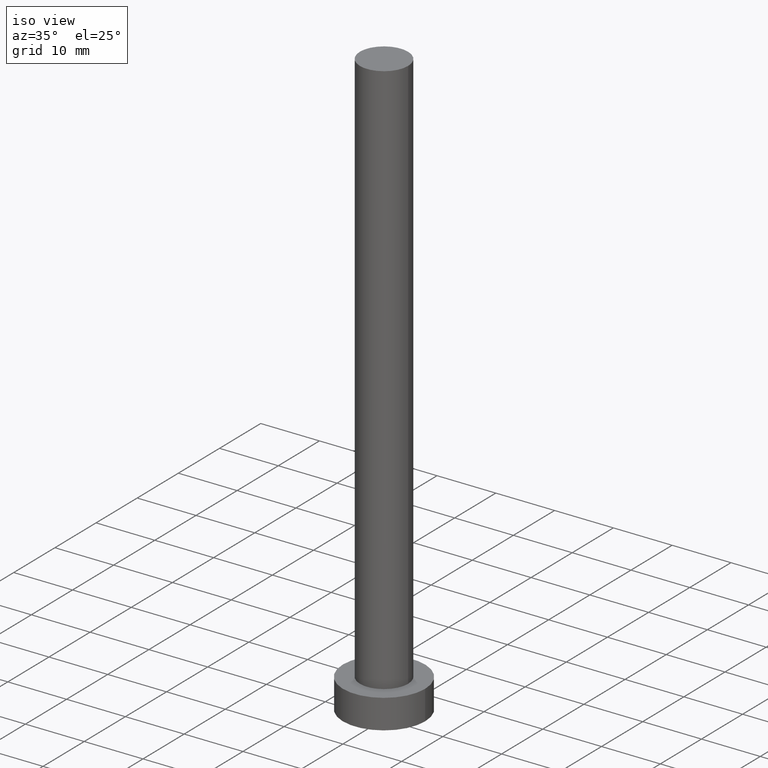
[diagram: clean part render]
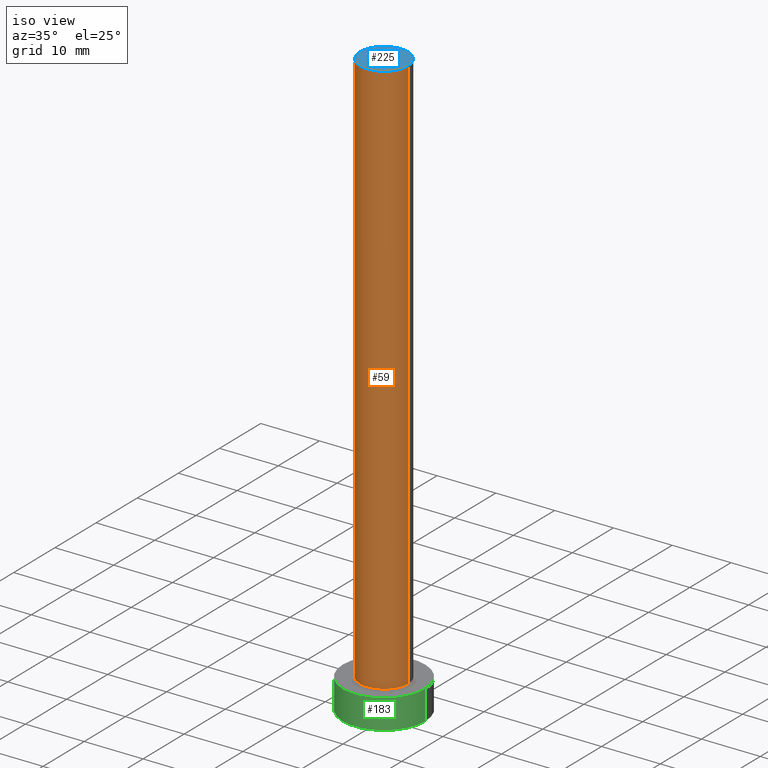
[diagram: same view with three faces highlighted in distinct colors, each labeled with its STEP entity id]
A machine part, iso view with three faces highlighted in distinct colors.
Their STEP definitions:

[orange] entity #59 — the highlighted cylindrical surface (edge-blend (fillet) strip) has radius 4.1 mm, axis along (-0, -0, -1).
#1 = DIRECTION ( 'NONE',  ( 1.000000000000000000, 0.000000000000000000, 0.000000000000000000 ) ) ;
#10 = ORIENTED_EDGE ( 'NONE', *, *, #232, .T. ) ;
#13 = VERTEX_POINT ( 'NONE', #27 ) ;
#27 = CARTESIAN_POINT ( 'NONE',  ( 4.099999999999999645, 5.021051876504147385E-16, 5.000000000000000000 ) ) ;
#36 = EDGE_LOOP ( 'NONE', ( #208, #153, #216, #10 ) ) ;
#50 = CYLINDRICAL_SURFACE ( 'NONE', #212, 4.099999999999999645 ) ;
#51 = FACE_OUTER_BOUND ( 'NONE', #36, .T. ) ;
#59 = ADVANCED_FACE ( 'NONE', ( #51 ), #50, .T. ) ;
#62 = CARTESIAN_POINT ( 'NONE',  ( 0.000000000000000000, 0.000000000000000000, 5.000000000000000000 ) ) ;
#63 = DIRECTION ( 'NONE',  ( -0.000000000000000000, -0.000000000000000000, -1.000000000000000000 ) ) ;
#70 = EDGE_CURVE ( 'NONE', #89, #253, #243, .T. ) ;
#85 = CARTESIAN_POINT ( 'NONE',  ( -4.099999999999999645, 0.000000000000000000, 5.000000000000000000 ) ) ;
#89 = VERTEX_POINT ( 'NONE', #234 ) ;
#93 = DIRECTION ( 'NONE',  ( 0.000000000000000000, 0.000000000000000000, 1.000000000000000000 ) ) ;
#98 = VECTOR ( 'NONE', #145, 1000.000000000000000 ) ;
#103 = CARTESIAN_POINT ( 'NONE',  ( 0.000000000000000000, 0.000000000000000000, 100.0000000000000000 ) ) ;
#111 = VECTOR ( 'NONE', #63, 1000.000000000000000 ) ;
#122 = VERTEX_POINT ( 'NONE', #140 ) ;
#129 = AXIS2_PLACEMENT_3D ( 'NONE', #193, #93, #1 ) ;
#140 = CARTESIAN_POINT ( 'NONE',  ( 4.099999999999999645, 5.021051876504147385E-16, 100.0000000000000000 ) ) ;
#145 = DIRECTION ( 'NONE',  ( -0.000000000000000000, -0.000000000000000000, -1.000000000000000000 ) ) ;
#151 = CIRCLE ( 'NONE', #129, 4.099999999999999645 ) ;
#153 = ORIENTED_EDGE ( 'NONE', *, *, #170, .F. ) ;
#154 = LINE ( 'NONE', #174, #111 ) ;
#164 = DIRECTION ( 'NONE',  ( -0.000000000000000000, -0.000000000000000000, -1.000000000000000000 ) ) ;
#170 = EDGE_CURVE ( 'NONE', #89, #122, #151, .T. ) ;
#173 = CIRCLE ( 'NONE', #245, 4.099999999999999645 ) ;
#174 = CARTESIAN_POINT ( 'NONE',  ( 4.099999999999999645, 5.021051876504147385E-16, 100.0000000000000000 ) ) ;
#192 = EDGE_CURVE ( 'NONE', #122, #13, #154, .T. ) ;
#193 = CARTESIAN_POINT ( 'NONE',  ( 0.000000000000000000, 0.000000000000000000, 100.0000000000000000 ) ) ;
#200 = DIRECTION ( 'NONE',  ( 0.000000000000000000, 0.000000000000000000, 1.000000000000000000 ) ) ;
#208 = ORIENTED_EDGE ( 'NONE', *, *, #192, .F. ) ;
#212 = AXIS2_PLACEMENT_3D ( 'NONE', #103, #164, #242 ) ;
#215 = DIRECTION ( 'NONE',  ( 1.000000000000000000, 0.000000000000000000, 0.000000000000000000 ) ) ;
#216 = ORIENTED_EDGE ( 'NONE', *, *, #70, .T. ) ;
#226 = CARTESIAN_POINT ( 'NONE',  ( -4.099999999999999645, 0.000000000000000000, 100.0000000000000000 ) ) ;
#232 = EDGE_CURVE ( 'NONE', #253, #13, #173, .T. ) ;
#234 = CARTESIAN_POINT ( 'NONE',  ( -4.099999999999999645, 0.000000000000000000, 100.0000000000000000 ) ) ;
#242 = DIRECTION ( 'NONE',  ( -1.000000000000000000, 0.000000000000000000, 0.000000000000000000 ) ) ;
#243 = LINE ( 'NONE', #226, #98 ) ;
#245 = AXIS2_PLACEMENT_3D ( 'NONE', #62, #200, #215 ) ;
#253 = VERTEX_POINT ( 'NONE', #85 ) ;

[blue] entity #225 — the highlighted planar face has unit normal (0, 0, 1).
#1 = DIRECTION ( 'NONE',  ( 1.000000000000000000, 0.000000000000000000, 0.000000000000000000 ) ) ;
#4 = PLANE ( 'NONE',  #255 ) ;
#24 = ORIENTED_EDGE ( 'NONE', *, *, #54, .T. ) ;
#28 = AXIS2_PLACEMENT_3D ( 'NONE', #182, #166, #167 ) ;
#52 = ORIENTED_EDGE ( 'NONE', *, *, #170, .T. ) ;
#54 = EDGE_CURVE ( 'NONE', #122, #89, #244, .T. ) ;
#75 = DIRECTION ( 'NONE',  ( 1.000000000000000000, 0.000000000000000000, -0.000000000000000000 ) ) ;
#89 = VERTEX_POINT ( 'NONE', #234 ) ;
#91 = EDGE_LOOP ( 'NONE', ( #52, #24 ) ) ;
#93 = DIRECTION ( 'NONE',  ( 0.000000000000000000, 0.000000000000000000, 1.000000000000000000 ) ) ;
#120 = DIRECTION ( 'NONE',  ( 0.000000000000000000, 0.000000000000000000, 1.000000000000000000 ) ) ;
#122 = VERTEX_POINT ( 'NONE', #140 ) ;
#129 = AXIS2_PLACEMENT_3D ( 'NONE', #193, #93, #1 ) ;
#132 = FACE_OUTER_BOUND ( 'NONE', #91, .T. ) ;
#137 = CARTESIAN_POINT ( 'NONE',  ( 0.000000000000000000, 0.000000000000000000, 100.0000000000000000 ) ) ;
#140 = CARTESIAN_POINT ( 'NONE',  ( 4.099999999999999645, 5.021051876504147385E-16, 100.0000000000000000 ) ) ;
#151 = CIRCLE ( 'NONE', #129, 4.099999999999999645 ) ;
#166 = DIRECTION ( 'NONE',  ( 0.000000000000000000, 0.000000000000000000, 1.000000000000000000 ) ) ;
#167 = DIRECTION ( 'NONE',  ( 1.000000000000000000, 0.000000000000000000, 0.000000000000000000 ) ) ;
#170 = EDGE_CURVE ( 'NONE', #89, #122, #151, .T. ) ;
#182 = CARTESIAN_POINT ( 'NONE',  ( 0.000000000000000000, 0.000000000000000000, 100.0000000000000000 ) ) ;
#193 = CARTESIAN_POINT ( 'NONE',  ( 0.000000000000000000, 0.000000000000000000, 100.0000000000000000 ) ) ;
#225 = ADVANCED_FACE ( 'NONE', ( #132 ), #4, .T. ) ;
#234 = CARTESIAN_POINT ( 'NONE',  ( -4.099999999999999645, 0.000000000000000000, 100.0000000000000000 ) ) ;
#244 = CIRCLE ( 'NONE', #28, 4.099999999999999645 ) ;
#255 = AXIS2_PLACEMENT_3D ( 'NONE', #137, #120, #75 ) ;

[green] entity #183 — the highlighted cylindrical surface (partial cylindrical patch) has radius 7 mm, axis along (-0, -0, -1).
#5 = ORIENTED_EDGE ( 'NONE', *, *, #87, .F. ) ;
#9 = CYLINDRICAL_SURFACE ( 'NONE', #61, 7.000000000000000000 ) ;
#14 = VECTOR ( 'NONE', #210, 1000.000000000000000 ) ;
#15 = AXIS2_PLACEMENT_3D ( 'NONE', #142, #197, #124 ) ;
#29 = CARTESIAN_POINT ( 'NONE',  ( -7.000000000000000000, 0.000000000000000000, 5.000000000000000000 ) ) ;
#41 = CARTESIAN_POINT ( 'NONE',  ( -7.000000000000000000, 0.000000000000000000, 0.000000000000000000 ) ) ;
#58 = ORIENTED_EDGE ( 'NONE', *, *, #152, .T. ) ;
#61 = AXIS2_PLACEMENT_3D ( 'NONE', #80, #240, #116 ) ;
#66 = DIRECTION ( 'NONE',  ( 1.000000000000000000, 0.000000000000000000, 0.000000000000000000 ) ) ;
#72 = EDGE_CURVE ( 'NONE', #81, #92, #224, .T. ) ;
#80 = CARTESIAN_POINT ( 'NONE',  ( 0.000000000000000000, 0.000000000000000000, 5.000000000000000000 ) ) ;
#81 = VERTEX_POINT ( 'NONE', #29 ) ;
#83 = EDGE_LOOP ( 'NONE', ( #5, #230, #162, #58 ) ) ;
#87 = EDGE_CURVE ( 'NONE', #222, #214, #102, .T. ) ;
#92 = VERTEX_POINT ( 'NONE', #41 ) ;
#97 = FACE_OUTER_BOUND ( 'NONE', #83, .T. ) ;
#99 = AXIS2_PLACEMENT_3D ( 'NONE', #109, #159, #66 ) ;
#102 = LINE ( 'NONE', #184, #14 ) ;
#109 = CARTESIAN_POINT ( 'NONE',  ( 0.000000000000000000, 0.000000000000000000, 5.000000000000000000 ) ) ;
#116 = DIRECTION ( 'NONE',  ( -1.000000000000000000, 0.000000000000000000, 0.000000000000000000 ) ) ;
#118 = VECTOR ( 'NONE', #206, 1000.000000000000000 ) ;
#119 = CIRCLE ( 'NONE', #15, 7.000000000000000000 ) ;
#124 = DIRECTION ( 'NONE',  ( 1.000000000000000000, 0.000000000000000000, 0.000000000000000000 ) ) ;
#142 = CARTESIAN_POINT ( 'NONE',  ( 0.000000000000000000, 0.000000000000000000, 0.000000000000000000 ) ) ;
#152 = EDGE_CURVE ( 'NONE', #92, #214, #119, .T. ) ;
#159 = DIRECTION ( 'NONE',  ( 0.000000000000000000, 0.000000000000000000, 1.000000000000000000 ) ) ;
#162 = ORIENTED_EDGE ( 'NONE', *, *, #72, .T. ) ;
#183 = ADVANCED_FACE ( 'NONE', ( #97 ), #9, .T. ) ;
#184 = CARTESIAN_POINT ( 'NONE',  ( 7.000000000000000000, 8.572527594031473190E-16, 5.000000000000000000 ) ) ;
#188 = EDGE_CURVE ( 'NONE', #81, #222, #227, .T. ) ;
#196 = CARTESIAN_POINT ( 'NONE',  ( 7.000000000000000000, 8.572527594031473190E-16, 0.000000000000000000 ) ) ;
#197 = DIRECTION ( 'NONE',  ( 0.000000000000000000, 0.000000000000000000, 1.000000000000000000 ) ) ;
#206 = DIRECTION ( 'NONE',  ( -0.000000000000000000, -0.000000000000000000, -1.000000000000000000 ) ) ;
#207 = CARTESIAN_POINT ( 'NONE',  ( -7.000000000000000000, 0.000000000000000000, 5.000000000000000000 ) ) ;
#210 = DIRECTION ( 'NONE',  ( -0.000000000000000000, -0.000000000000000000, -1.000000000000000000 ) ) ;
#214 = VERTEX_POINT ( 'NONE', #196 ) ;
#222 = VERTEX_POINT ( 'NONE', #233 ) ;
#224 = LINE ( 'NONE', #207, #118 ) ;
#227 = CIRCLE ( 'NONE', #99, 7.000000000000000000 ) ;
#230 = ORIENTED_EDGE ( 'NONE', *, *, #188, .F. ) ;
#233 = CARTESIAN_POINT ( 'NONE',  ( 7.000000000000000000, 8.572527594031473190E-16, 5.000000000000000000 ) ) ;
#240 = DIRECTION ( 'NONE',  ( -0.000000000000000000, -0.000000000000000000, -1.000000000000000000 ) ) ;